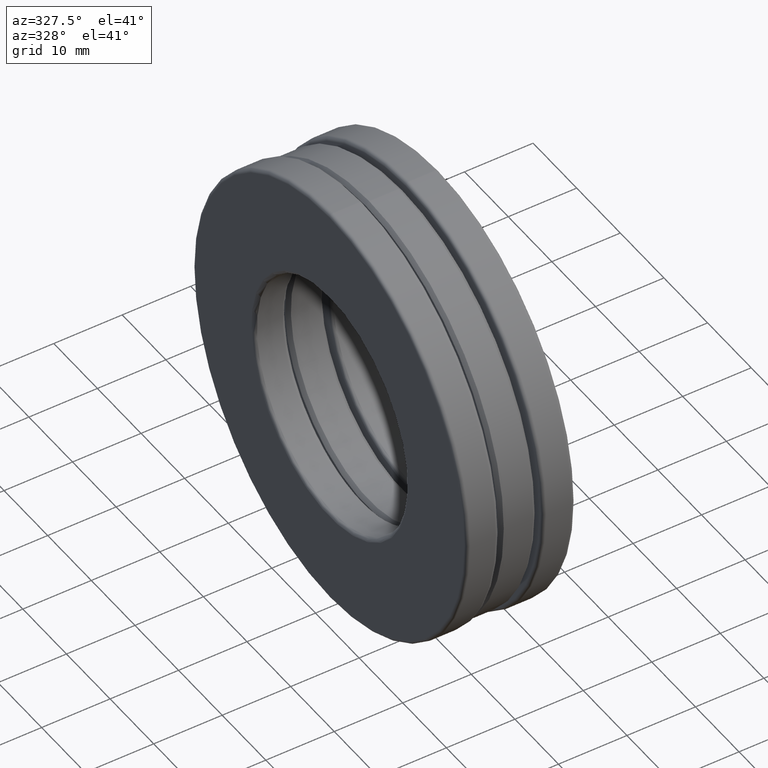
[diagram: clean part render]
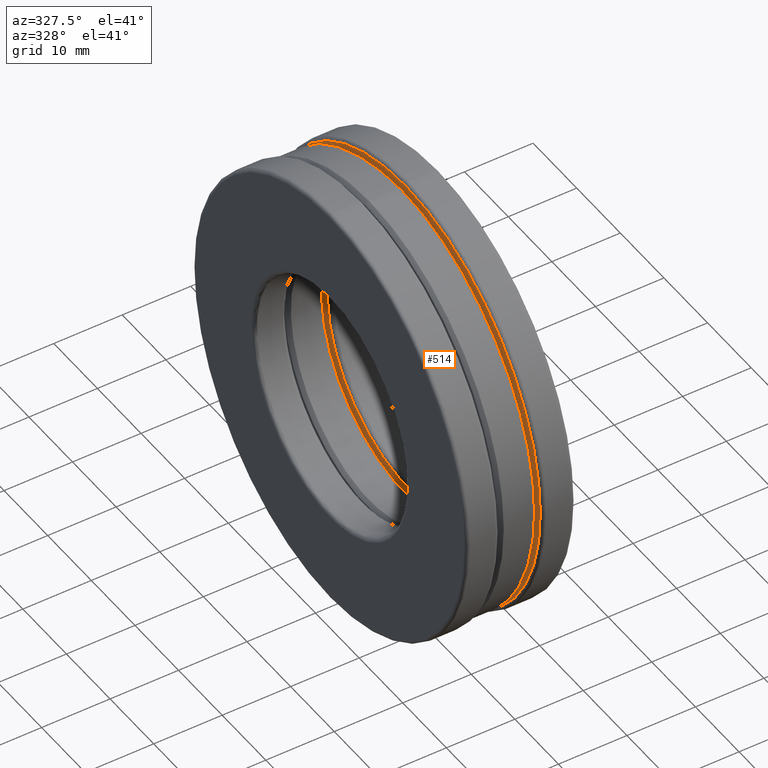
[diagram: same view with one face highlighted and labeled with its STEP entity id]
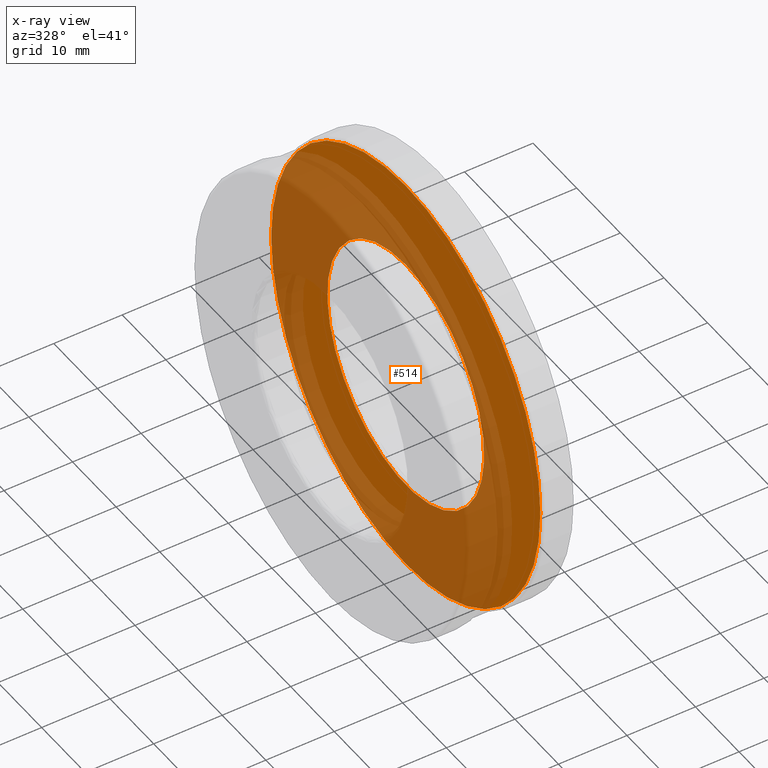
[diagram: x-ray of the same camera — body ghosted, the highlighted face saturated]
A machine part, auxiliary view. The second image highlights one B-rep face of the part: STEP entity #514.
The next image is the same camera in x-ray: the body ghosted, the highlighted face saturated — about 59% of this face is hidden behind the body in this view.
In plain terms, the highlighted planar face has unit normal (1, 0, 0).
Its self-contained STEP definition (entity closure, byte-faithful):
#11 = VERTEX_POINT ( 'NONE', #886 ) ;
#47 = PLANE ( 'NONE',  #1449 ) ;
#61 = DIRECTION ( 'NONE',  ( 0.0000000000000000000, 0.0000000000000000000, 1.000000000000000000 ) ) ;
#66 = AXIS2_PLACEMENT_3D ( 'NONE', #1314, #650, #61 ) ;
#160 = DIRECTION ( 'NONE',  ( 0.0000000000000000000, 0.0000000000000000000, -1.000000000000000000 ) ) ;
#180 = FACE_BOUND ( 'NONE', #290, .T. ) ;
#290 = EDGE_LOOP ( 'NONE', ( #1308 ) ) ;
#413 = ORIENTED_EDGE ( 'NONE', *, *, #1162, .T. ) ;
#514 = ADVANCED_FACE ( 'NONE', ( #180, #1196 ), #47, .F. ) ;
#650 = DIRECTION ( 'NONE',  ( -1.000000000000000000, -0.0000000000000000000, -0.0000000000000000000 ) ) ;
#656 = CARTESIAN_POINT ( 'NONE',  ( 0.1250000000000000000, 0.0000000000000000000, 0.0000000000000000000 ) ) ;
#698 = CIRCLE ( 'NONE', #945, 0.7075000000000000200 ) ;
#755 = DIRECTION ( 'NONE',  ( -1.000000000000000000, -0.0000000000000000000, -0.0000000000000000000 ) ) ;
#873 = DIRECTION ( 'NONE',  ( 0.0000000000000000000, 0.0000000000000000000, 1.000000000000000000 ) ) ;
#874 = EDGE_LOOP ( 'NONE', ( #413 ) ) ;
#886 = CARTESIAN_POINT ( 'NONE',  ( 0.1250000000000000000, 0.0000000000000000000, 0.7075000000000000200 ) ) ;
#945 = AXIS2_PLACEMENT_3D ( 'NONE', #656, #755, #873 ) ;
#994 = CARTESIAN_POINT ( 'NONE',  ( 0.1250000000000000000, 0.0000000000000000000, 1.214375000000000200 ) ) ;
#1107 = VERTEX_POINT ( 'NONE', #994 ) ;
#1155 = EDGE_CURVE ( 'NONE', #11, #11, #698, .T. ) ;
#1162 = EDGE_CURVE ( 'NONE', #1107, #1107, #1182, .T. ) ;
#1171 = CARTESIAN_POINT ( 'NONE',  ( 0.1250000000000000000, 0.0000000000000000000, 0.0000000000000000000 ) ) ;
#1182 = CIRCLE ( 'NONE', #66, 1.214375000000000200 ) ;
#1196 = FACE_OUTER_BOUND ( 'NONE', #874, .T. ) ;
#1275 = DIRECTION ( 'NONE',  ( 1.000000000000000000, 0.0000000000000000000, 0.0000000000000000000 ) ) ;
#1308 = ORIENTED_EDGE ( 'NONE', *, *, #1155, .F. ) ;
#1314 = CARTESIAN_POINT ( 'NONE',  ( 0.1250000000000000000, 0.0000000000000000000, 0.0000000000000000000 ) ) ;
#1449 = AXIS2_PLACEMENT_3D ( 'NONE', #1171, #1275, #160 ) ;